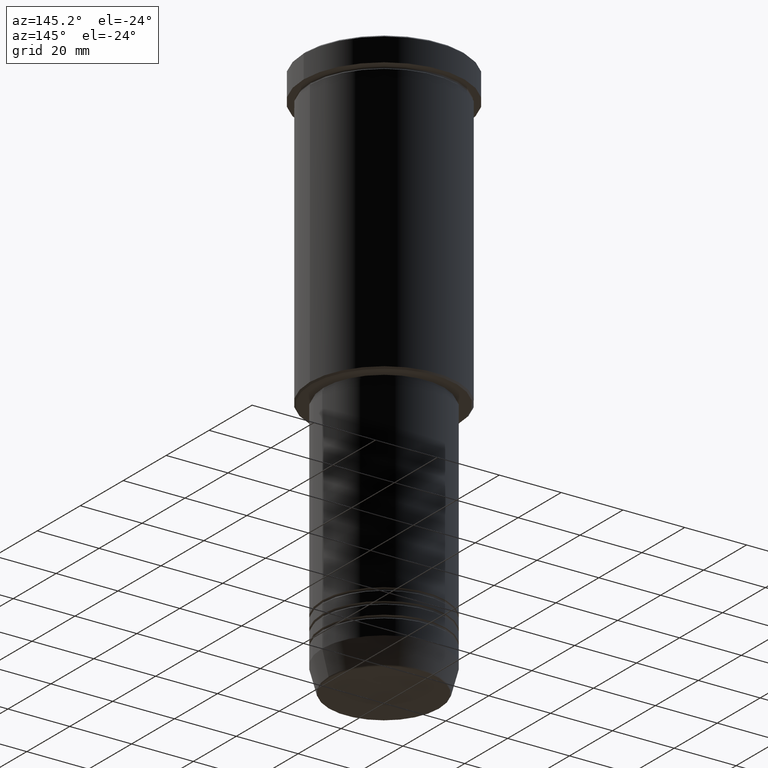
[diagram: clean part render]
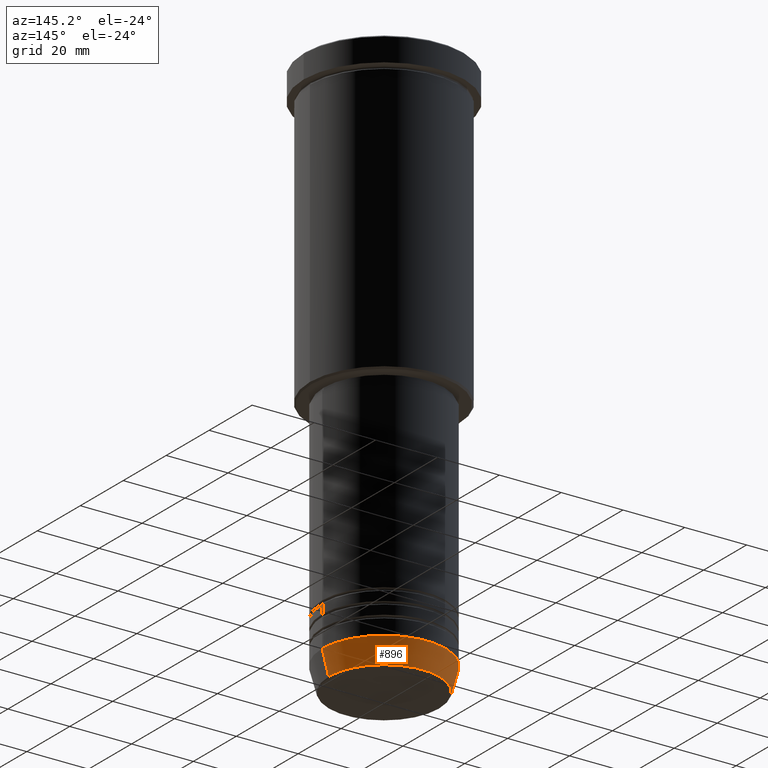
[diagram: same view with one face highlighted and labeled with its STEP entity id]
A machine part, auxiliary view. The second image highlights one B-rep face of the part: STEP entity #896.
In plain terms, the highlighted conical surface has half-angle 15 deg.
Its self-contained STEP definition (entity closure, byte-faithful):
#9 = DIRECTION ( 'NONE',  ( 0.2588190451025213501, 0.000000000000000000, 0.9659258262890680902 ) ) ;
#48 = LINE ( 'NONE', #1153, #486 ) ;
#52 = ORIENTED_EDGE ( 'NONE', *, *, #947, .T. ) ;
#53 = CARTESIAN_POINT ( 'NONE',  ( 0.000000000000000000, 0.000000000000000000, -172.0000000000000000 ) ) ;
#80 = VERTEX_POINT ( 'NONE', #1065 ) ;
#114 = CIRCLE ( 'NONE', #1161, 20.00000000000000355 ) ;
#126 = DIRECTION ( 'NONE',  ( 1.000000000000000000, 0.000000000000000000, 0.000000000000000000 ) ) ;
#173 = LINE ( 'NONE', #382, #1176 ) ;
#205 = CARTESIAN_POINT ( 'NONE',  ( 17.95570587970607690, 0.000000000000000000, -179.6294095225512706 ) ) ;
#237 = ORIENTED_EDGE ( 'NONE', *, *, #628, .T. ) ;
#247 = CIRCLE ( 'NONE', #1008, 17.95570587970607690 ) ;
#291 = VERTEX_POINT ( 'NONE', #477 ) ;
#349 = CONICAL_SURFACE ( 'NONE', #997, 20.00000000000000355, 0.2617993877991500740 ) ;
#382 = CARTESIAN_POINT ( 'NONE',  ( 20.00000000000000355, 0.000000000000000000, -172.0000000000000000 ) ) ;
#412 = ORIENTED_EDGE ( 'NONE', *, *, #1030, .F. ) ;
#475 = FACE_OUTER_BOUND ( 'NONE', #966, .T. ) ;
#477 = CARTESIAN_POINT ( 'NONE',  ( -17.95570587970607690, 2.324116685748021371E-15, -179.6294095225512706 ) ) ;
#486 = VECTOR ( 'NONE', #1157, 1000.000000000000000 ) ;
#518 = DIRECTION ( 'NONE',  ( -0.000000000000000000, -0.000000000000000000, 1.000000000000000000 ) ) ;
#628 = EDGE_CURVE ( 'NONE', #963, #291, #247, .T. ) ;
#657 = DIRECTION ( 'NONE',  ( -0.000000000000000000, -0.000000000000000000, 1.000000000000000000 ) ) ;
#761 = DIRECTION ( 'NONE',  ( -0.000000000000000000, -0.000000000000000000, 1.000000000000000000 ) ) ;
#856 = DIRECTION ( 'NONE',  ( 1.000000000000000000, 0.000000000000000000, 0.000000000000000000 ) ) ;
#881 = DIRECTION ( 'NONE',  ( 1.000000000000000000, 0.000000000000000000, 0.000000000000000000 ) ) ;
#887 = VERTEX_POINT ( 'NONE', #923 ) ;
#896 = ADVANCED_FACE ( 'NONE', ( #475 ), #349, .T. ) ;
#923 = CARTESIAN_POINT ( 'NONE',  ( -20.00000000000000355, 2.449293598294706907E-15, -172.0000000000000000 ) ) ;
#947 = EDGE_CURVE ( 'NONE', #291, #887, #48, .T. ) ;
#963 = VERTEX_POINT ( 'NONE', #205 ) ;
#966 = EDGE_LOOP ( 'NONE', ( #237, #52, #1044, #412 ) ) ;
#997 = AXIS2_PLACEMENT_3D ( 'NONE', #1132, #657, #856 ) ;
#1008 = AXIS2_PLACEMENT_3D ( 'NONE', #1046, #761, #881 ) ;
#1013 = EDGE_CURVE ( 'NONE', #80, #887, #114, .T. ) ;
#1030 = EDGE_CURVE ( 'NONE', #963, #80, #173, .T. ) ;
#1044 = ORIENTED_EDGE ( 'NONE', *, *, #1013, .F. ) ;
#1046 = CARTESIAN_POINT ( 'NONE',  ( 0.000000000000000000, 0.000000000000000000, -179.6294095225512706 ) ) ;
#1065 = CARTESIAN_POINT ( 'NONE',  ( 20.00000000000000355, 0.000000000000000000, -172.0000000000000000 ) ) ;
#1132 = CARTESIAN_POINT ( 'NONE',  ( 0.000000000000000000, 0.000000000000000000, -172.0000000000000000 ) ) ;
#1153 = CARTESIAN_POINT ( 'NONE',  ( -20.00000000000000355, 2.449293598294706907E-15, -172.0000000000000000 ) ) ;
#1157 = DIRECTION ( 'NONE',  ( -0.2588190451025213501, 3.169619151431772337E-17, 0.9659258262890680902 ) ) ;
#1161 = AXIS2_PLACEMENT_3D ( 'NONE', #53, #518, #126 ) ;
#1176 = VECTOR ( 'NONE', #9, 1000.000000000000000 ) ;